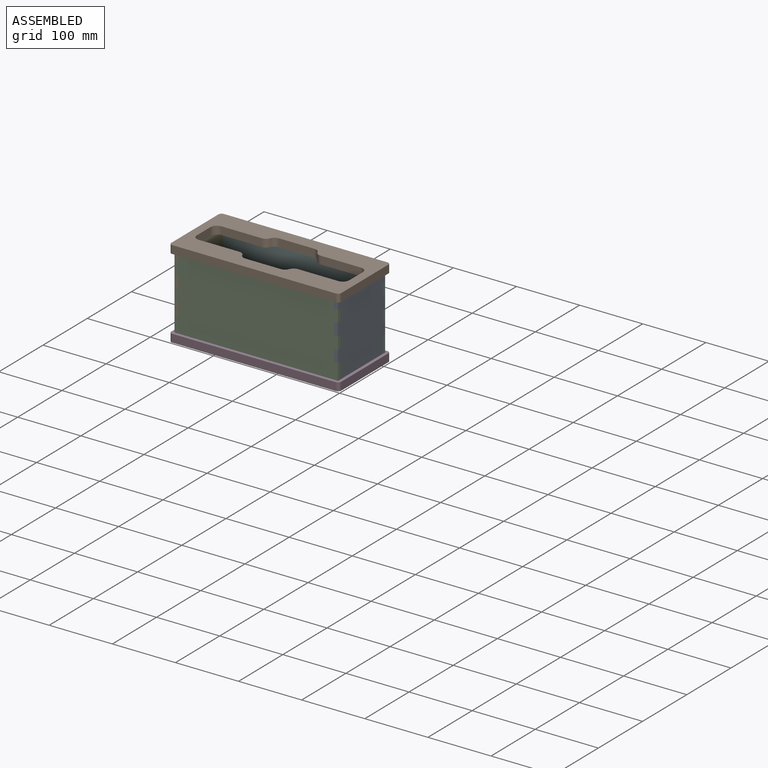
[diagram: assembled view]
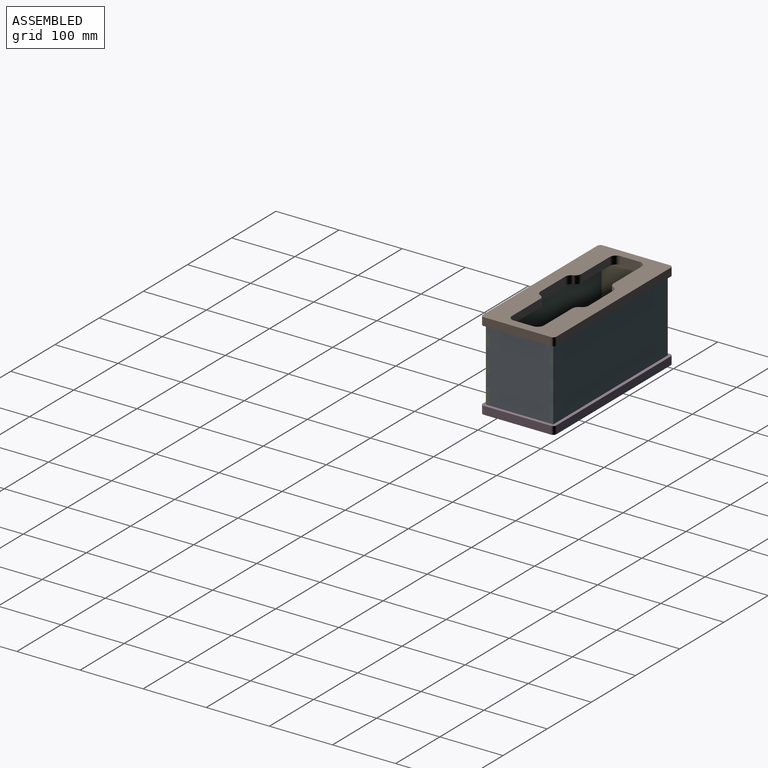
[diagram: assembled view, second angle]
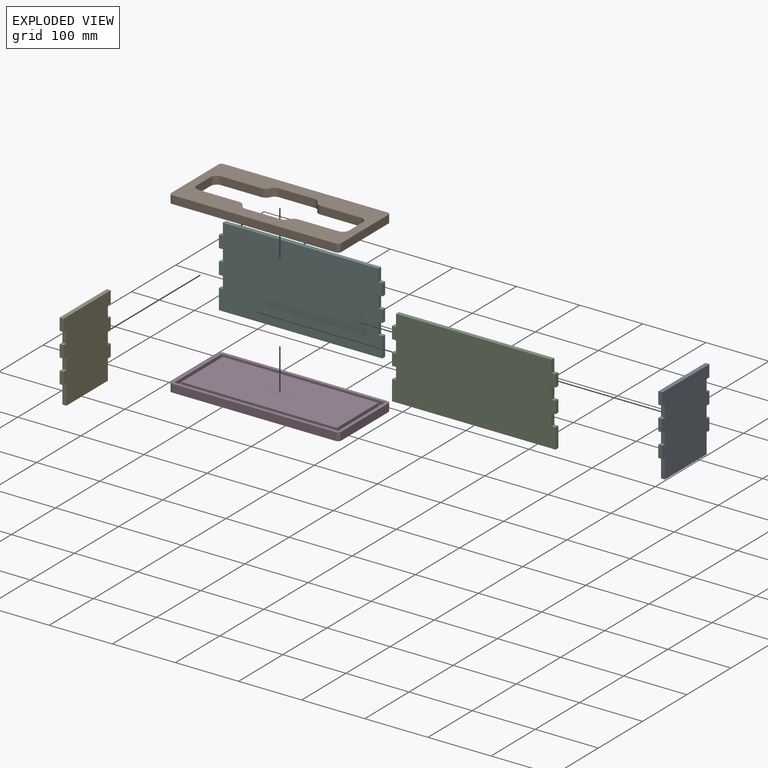
[diagram: exploded view]
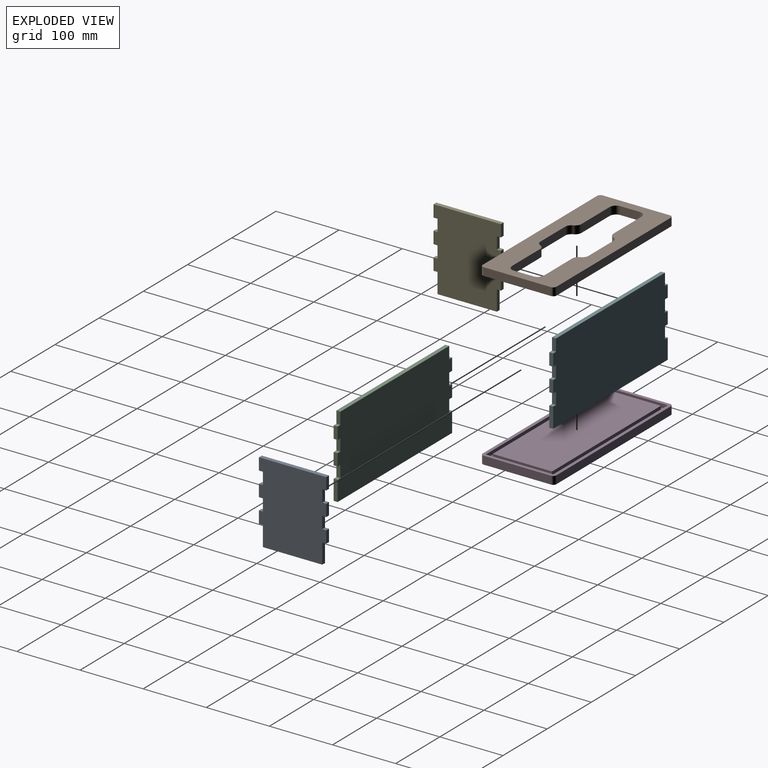
[diagram: exploded view, second angle]
ASSEMBLY  parts=6 mates=5
PART A: 26 faces, bbox 6.4x106.7x127 mm
  f0: plane 19.05x6.35mm, normal (0,1,0), area 121mm2, adj f5,f7,f18,f23
  f1: plane 19.05x6.35mm, normal (0,-1,0), area 121mm2, adj f5,f7,f15,f22
  f2: plane 19.05x6.35mm, normal (0,1,0), area 121mm2, adj f5,f7,f12,f17
  f3: plane 19.05x6.35mm, normal (0,-1,0), area 121mm2, adj f5,f7,f11,f16
  f4: plane 31.75x6.35mm, normal (0,1,0), area 201.6mm2, adj f5,f7,f9,f24
  f5: plane 127x106.68mm, normal (-1,0,0), area 12661.3mm2, adj f0,f1,f2,f3,f4,f6,f8,f9
  f6: plane 31.75x6.35mm, normal (0,-1,0), area 201.6mm2, adj f5,f7,f9,f21
  f7: plane 127x106.68mm, normal (1,0,0), area 12661.3mm2, adj f0,f1,f2,f3,f4,f6,f8,f9
  f8: plane 106.68x6.35mm, normal (0,0,1), area 677.4mm2, adj f5,f7,f10,f13
  f9: plane 93.98x6.35mm, normal (0,0,-1), area 596.8mm2, adj f4,f5,f6,f7
  f10: plane 19.05x6.35mm, normal (0,-1,0), area 121mm2, adj f5,f7,f8,f11
  f11: plane 6.35x6.35mm, normal (0,0,-1), area 40.3mm2, adj f3,f5,f7,f10
  f12: plane 6.35x6.35mm, normal (0,0,-1), area 40.3mm2, adj f2,f5,f7,f13
  f13: plane 19.05x6.35mm, normal (0,1,0), area 121mm2, adj f5,f7,f8,f12
  f14: plane 19.05x6.35mm, normal (0,-1,0), area 121mm2, adj f5,f7,f15,f16
  f15: plane 6.35x6.35mm, normal (0,0,-1), area 40.3mm2, adj f1,f5,f7,f14
  f16: plane 6.35x6.35mm, normal (0,0,1), area 40.3mm2, adj f3,f5,f7,f14
  f17: plane 6.35x6.35mm, normal (0,0,1), area 40.3mm2, adj f2,f5,f7,f19
  f18: plane 6.35x6.35mm, normal (0,0,-1), area 40.3mm2, adj f0,f5,f7,f19
  f19: plane 19.05x6.35mm, normal (0,1,0), area 121mm2, adj f5,f7,f17,f18
  f20: plane 19.05x6.35mm, normal (0,-1,0), area 121mm2, adj f5,f7,f21,f22
  f21: plane 6.35x6.35mm, normal (0,0,-1), area 40.3mm2, adj f5,f6,f7,f20
  f22: plane 6.35x6.35mm, normal (0,0,1), area 40.3mm2, adj f1,f5,f7,f20
  f23: plane 6.35x6.35mm, normal (0,0,1), area 40.3mm2, adj f0,f5,f7,f25
  f24: plane 6.35x6.35mm, normal (0,0,-1), area 40.3mm2, adj f4,f5,f7,f25
  f25: plane 19.05x6.35mm, normal (0,1,0), area 121mm2, adj f5,f7,f23,f24
PART B: 40 faces, bbox 269.2x116.8x12.7 mm
  f0: plane 93.98x6.35mm, normal (-1,0,0), area 596.8mm2, adj f1,f3,f4,f18
  f1: plane 246.38x6.35mm, normal (0,-1,0), area 1564.5mm2, adj f0,f2,f4,f18
  f2: plane 93.98x6.35mm, normal (1,0,0), area 596.8mm2, adj f1,f3,f4,f18
  f3: plane 246.38x6.35mm, normal (0,1,0), area 1564.5mm2, adj f0,f2,f4,f18
  f4: plane 246.38x93.98mm, normal (0,0,1), area 9087.5mm2, adj f0,f1,f2,f3,f20,f21,f22,f23
  f5: plane 106.68x12.7mm, normal (1,0,0), area 1354.8mm2, adj f6,f16,f17,f19
  f6: cylinder r=5.08mm len=12.7mm, axis (0,0,-1), area 101.3mm2, adj f5,f7,f17,f19
  f7: plane 259.08x12.7mm, normal (0,1,0), area 3290.3mm2, adj f6,f8,f17,f19
  f8: cylinder r=5.08mm len=12.7mm, axis (0,0,-1), area 101.3mm2, adj f7,f9,f17,f19
  f9: plane 106.68x12.7mm, normal (-1,0,0), area 1354.8mm2, adj f8,f10,f17,f19
  f10: cylinder r=5.08mm len=12.7mm, axis (0,0,-1), area 101.3mm2, adj f9,f11,f17,f19
  f11: plane 259.08x12.7mm, normal (0,-1,0), area 3290.3mm2, adj f10,f16,f17,f19
  f12: plane 259.08x6.35mm, normal (0,1,0), area 1645.2mm2, adj f13,f15,f17,f18
  f13: plane 106.68x6.35mm, normal (1,0,0), area 677.4mm2, adj f12,f14,f17,f18
  f14: plane 259.08x6.35mm, normal (0,-1,0), area 1645.2mm2, adj f13,f15,f17,f18
  f15: plane 106.68x6.35mm, normal (-1,0,0), area 677.4mm2, adj f12,f14,f17,f18
  f16: cylinder r=5.08mm len=12.7mm, axis (0,0,-1), area 101.3mm2, adj f5,f11,f17,f19
  f17: plane 269.24x116.84mm, normal (0,0,1), area 3797.2mm2, adj f5,f6,f7,f8,f9,f10,f11,f12
  f18: plane 259.08x106.68mm, normal (0,0,1), area 4483.9mm2, adj f0,f1,f2,f3,f12,f13,f14,f15
  f19: plane 269.24x116.84mm, normal (0,0,-1), area 17368.6mm2, adj f5,f6,f7,f8,f9,f10,f11,f16
  f20: cylinder r=10.16mm len=12.7mm, axis (0,0,1), area 153.1mm2, adj f4,f19,f35,f36
  f21: plane 63.71x12.7mm, normal (0,-1,0), area 809.2mm2, adj f4,f19,f22,f36
  f22: cylinder r=10.16mm len=12.7mm, axis (0,0,1), area 202.7mm2, adj f4,f19,f21,f23
  f23: plane 30.48x12.7mm, normal (1,0,0), area 387.1mm2, adj f4,f19,f22,f24
  f24: cylinder r=10.16mm len=12.7mm, axis (0,0,1), area 202.7mm2, adj f4,f19,f23,f25
  f25: plane 63.71x12.7mm, normal (0,1,0), area 809.2mm2, adj f4,f19,f24,f39
  f26: cylinder r=10.16mm len=12.7mm, axis (0,0,1), area 153.1mm2, adj f4,f19,f27,f39
  f27: plane 55.88x12.7mm, normal (0,1,0), area 709.7mm2, adj f4,f19,f26,f28
  f28: cylinder r=10.16mm len=12.7mm, axis (0,0,1), area 153.1mm2, adj f4,f19,f27,f38
  f29: plane 63.71x12.7mm, normal (0,1,0), area 809.2mm2, adj f4,f19,f30,f38
  f30: cylinder r=10.16mm len=12.7mm, axis (0,0,1), area 202.7mm2, adj f4,f19,f29,f31
  f31: plane 30.48x12.7mm, normal (-1,0,0), area 387.1mm2, adj f4,f19,f30,f32
  f32: cylinder r=10.16mm len=12.7mm, axis (0,0,1), area 202.7mm2, adj f4,f19,f31,f33
  f33: plane 63.71x12.7mm, normal (0,-1,0), area 809.2mm2, adj f4,f19,f32,f37
  f34: cylinder r=10.16mm len=12.7mm, axis (0,0,1), area 153.1mm2, adj f4,f19,f35,f37
  f35: plane 55.88x12.7mm, normal (0,-1,0), area 709.7mm2, adj f4,f19,f20,f34
  f36: cylinder r=10.16mm len=12.7mm, axis (0,0,1), area 153.1mm2, adj f4,f19,f20,f21
  f37: cylinder r=10.16mm len=12.7mm, axis (0,0,1), area 153.1mm2, adj f4,f19,f33,f34
  f38: cylinder r=10.16mm len=12.7mm, axis (0,0,1), area 153.1mm2, adj f4,f19,f28,f29
  f39: cylinder r=10.16mm len=12.7mm, axis (0,0,1), area 153.1mm2, adj f4,f19,f25,f26
PART C: 26 faces, bbox 259.1x6.4x127 mm
  f0: plane 19.05x6.35mm, normal (-1,0,0), area 121mm2, adj f5,f6,f19,f22
  f1: plane 19.05x6.35mm, normal (-1,0,0), area 121mm2, adj f5,f6,f16,f20
  f2: plane 19.05x6.35mm, normal (1,0,0), area 121mm2, adj f5,f6,f13,f25
  f3: plane 19.05x6.35mm, normal (1,0,0), area 121mm2, adj f5,f6,f10,f15
  f4: plane 246.38x6.35mm, normal (0,0,1), area 1564.5mm2, adj f5,f6,f23,f24
  f5: plane 259.08x127mm, normal (0,1,0), area 32177.4mm2, adj f0,f1,f2,f3,f4,f7,f8,f9
  f6: plane 259.08x127mm, normal (0,-1,0), area 32177.4mm2, adj f0,f1,f2,f3,f4,f7,f8,f9
  f7: plane 31.75x6.35mm, normal (-1,0,0), area 201.6mm2, adj f5,f6,f9,f17
  f8: plane 31.75x6.35mm, normal (1,0,0), area 201.6mm2, adj f5,f6,f9,f12
  f9: plane 259.08x6.35mm, normal (0,0,-1), area 1645.2mm2, adj f5,f6,f7,f8
  f10: plane 6.35x6.35mm, normal (0,0,-1), area 40.3mm2, adj f3,f5,f6,f11
  f11: plane 19.05x6.35mm, normal (1,0,0), area 121mm2, adj f5,f6,f10,f12
  f12: plane 6.35x6.35mm, normal (0,0,1), area 40.3mm2, adj f5,f6,f8,f11
  f13: plane 6.35x6.35mm, normal (0,0,-1), area 40.3mm2, adj f2,f5,f6,f14
  f14: plane 19.05x6.35mm, normal (1,0,0), area 121mm2, adj f5,f6,f13,f15
  f15: plane 6.35x6.35mm, normal (0,0,1), area 40.3mm2, adj f3,f5,f6,f14
  f16: plane 6.35x6.35mm, normal (0,0,-1), area 40.3mm2, adj f1,f5,f6,f18
  f17: plane 6.35x6.35mm, normal (0,0,1), area 40.3mm2, adj f5,f6,f7,f18
  f18: plane 19.05x6.35mm, normal (-1,0,0), area 121mm2, adj f5,f6,f16,f17
  f19: plane 6.35x6.35mm, normal (0,0,-1), area 40.3mm2, adj f0,f5,f6,f21
  f20: plane 6.35x6.35mm, normal (0,0,1), area 40.3mm2, adj f1,f5,f6,f21
  f21: plane 19.05x6.35mm, normal (-1,0,0), area 121mm2, adj f5,f6,f19,f20
  f22: plane 6.35x6.35mm, normal (0,0,1), area 40.3mm2, adj f0,f5,f6,f23
  f23: plane 19.05x6.35mm, normal (-1,0,0), area 121mm2, adj f4,f5,f6,f22
  f24: plane 19.05x6.35mm, normal (1,0,0), area 121mm2, adj f4,f5,f6,f25
  f25: plane 6.35x6.35mm, normal (0,0,1), area 40.3mm2, adj f2,f5,f6,f24
PART D: 20 faces, bbox 269.2x116.8x12.7 mm
  f0: plane 93.98x6.35mm, normal (-1,0,0), area 596.8mm2, adj f1,f3,f4,f18
  f1: plane 246.38x6.35mm, normal (0,-1,0), area 1564.5mm2, adj f0,f2,f4,f18
  f2: plane 93.98x6.35mm, normal (1,0,0), area 596.8mm2, adj f1,f3,f4,f18
  f3: plane 246.38x6.35mm, normal (0,1,0), area 1564.5mm2, adj f0,f2,f4,f18
  f4: plane 246.38x93.98mm, normal (0,0,1), area 23154.8mm2, adj f0,f1,f2,f3
  f5: plane 106.68x12.7mm, normal (1,0,0), area 1354.8mm2, adj f6,f16,f17,f19
  f6: cylinder r=5.08mm len=12.7mm, axis (0,0,-1), area 101.3mm2, adj f5,f7,f17,f19
  f7: plane 259.08x12.7mm, normal (0,1,0), area 3290.3mm2, adj f6,f8,f17,f19
  f8: cylinder r=5.08mm len=12.7mm, axis (0,0,-1), area 101.3mm2, adj f7,f9,f17,f19
  f9: plane 106.68x12.7mm, normal (-1,0,0), area 1354.8mm2, adj f8,f10,f17,f19
  f10: cylinder r=5.08mm len=12.7mm, axis (0,0,-1), area 101.3mm2, adj f9,f11,f17,f19
  f11: plane 259.08x12.7mm, normal (0,-1,0), area 3290.3mm2, adj f10,f16,f17,f19
  f12: plane 259.08x6.35mm, normal (0,1,0), area 1645.2mm2, adj f13,f15,f17,f18
  f13: plane 106.68x6.35mm, normal (1,0,0), area 677.4mm2, adj f12,f14,f17,f18
  f14: plane 259.08x6.35mm, normal (0,-1,0), area 1645.2mm2, adj f13,f15,f17,f18
  f15: plane 106.68x6.35mm, normal (-1,0,0), area 677.4mm2, adj f12,f14,f17,f18
  f16: cylinder r=5.08mm len=12.7mm, axis (0,0,-1), area 101.3mm2, adj f5,f11,f17,f19
  f17: plane 269.24x116.84mm, normal (0,0,1), area 3797.2mm2, adj f5,f6,f7,f8,f9,f10,f11,f12
  f18: plane 259.08x106.68mm, normal (0,0,1), area 4483.9mm2, adj f0,f1,f2,f3,f12,f13,f14,f15
  f19: plane 269.24x116.84mm, normal (0,0,-1), area 31435.8mm2, adj f5,f6,f7,f8,f9,f10,f11,f16
PART E: same geometry as A
PART F: same geometry as C
PLACE A t=(286.2,79.59,321.11)mm
PLACE B rot(axis=(-1,0,0),180deg) t=(33.47,173.57,575.11)mm
PLACE C t=(33.47,79.59,321.11)mm
PLACE D t=(33.47,79.59,321.11)mm
PLACE E t=(33.47,79.59,321.11)mm
PLACE F t=(33.47,179.92,321.11)mm
MATE fastened E.f7 <-> C.f23  axis (1,0,0) through (33.47,73.24,448.11)mm
MATE fastened D.f8 <-> F.f9  axis (0,0,1) through (27.12,179.92,321.11)mm
MATE fastened F.f23 <-> E.f7  axis (-1,0,0) through (33.47,179.92,448.11)mm
MATE fastened C.f24 <-> A.f5  axis (1,0,0) through (279.85,73.24,448.11)mm
MATE fastened E.f8 <-> B.f8  axis (0,0,1) through (27.12,73.24,448.11)mm
